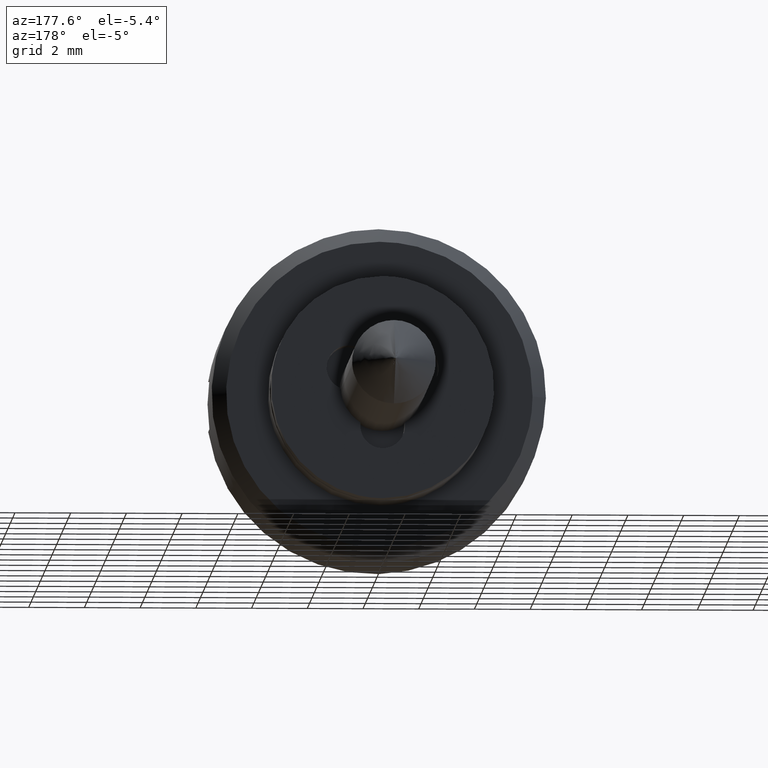
[diagram: clean part render]
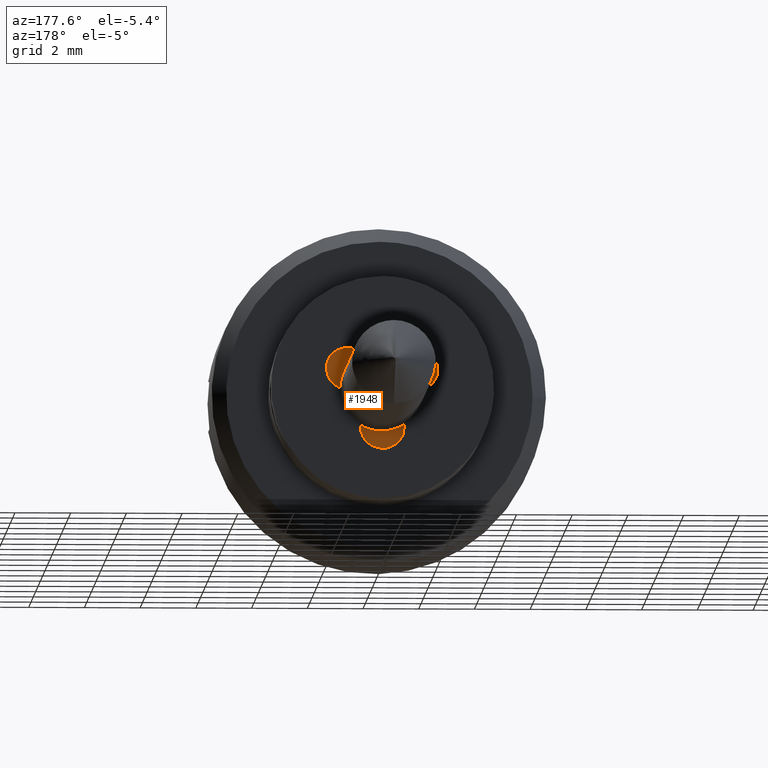
[diagram: same view with one face highlighted and labeled with its STEP entity id]
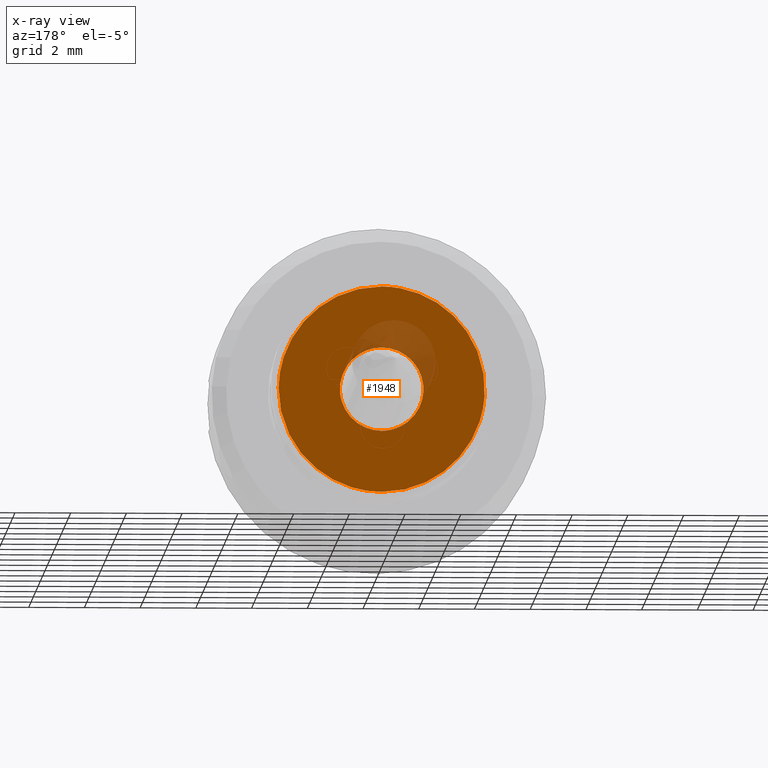
[diagram: x-ray of the same camera — body ghosted, the highlighted face saturated]
A machine part, auxiliary view. The second image highlights one B-rep face of the part: STEP entity #1948.
The next image is the same camera in x-ray: the body ghosted, the highlighted face saturated — about 9% of this face is hidden behind the body in this view.
In plain terms, the highlighted face is a freeform B-spline surface patch.
Its self-contained STEP definition (entity closure, byte-faithful):
#893=CARTESIAN_POINT('',(2.775558E-017,-1.497202197631943,-0.091572809316308));
#894=VERTEX_POINT('',#893);
#900=CARTESIAN_POINT('',(0.0,0.0,-1.500000000000000));
#901=VERTEX_POINT('',#900);
#902=CARTESIAN_POINT('',(0.0,0.0,-1.500000000000000));
#903=CARTESIAN_POINT('',(0.0,-1.411059100332062,-1.500000000000000));
#904=CARTESIAN_POINT('',(2.775558E-017,-1.497202197631943,-0.091572809316308));
#912=(BOUNDED_CURVE()B_SPLINE_CURVE(2,(#902,#903,#904),.UNSPECIFIED.,.F.,.U.)B_SPLINE_CURVE_WITH_KNOTS((3,3),(0.500000000000000,0.739332962238736),.UNSPECIFIED.)CURVE()GEOMETRIC_REPRESENTATION_ITEM()RATIONAL_B_SPLINE_CURVE((1.0,0.719603993286952,0.976072041666275))REPRESENTATION_ITEM(''));
#913=EDGE_CURVE('',#901,#894,#912,.T.);
#915=CARTESIAN_POINT('',(5.678856E-017,1.489514591208932,0.177048814085709));
#916=VERTEX_POINT('',#915);
#917=CARTESIAN_POINT('',(5.678856E-017,1.489514591208932,0.177048814085709));
#918=CARTESIAN_POINT('',(0.0,1.500000000000001,0.088834897113301));
#919=CARTESIAN_POINT('',(0.0,1.500000000000000,0.0));
#920=CARTESIAN_POINT('',(0.0,1.500000000000000,-1.500000000000000));
#921=CARTESIAN_POINT('',(0.0,0.0,-1.500000000000000));
#929=(BOUNDED_CURVE()B_SPLINE_CURVE(2,(#917,#918,#919,#920,#921),.UNSPECIFIED.,.F.,.U.)B_SPLINE_CURVE_WITH_KNOTS((3,2,3),(0.229562761470782,0.250000000000000,0.500000000000000),.UNSPECIFIED.)CURVE()GEOMETRIC_REPRESENTATION_ITEM()RATIONAL_B_SPLINE_CURVE((0.956027318592516,0.976056285694076,1.0,0.707106781186548,1.0))REPRESENTATION_ITEM(''));
#930=EDGE_CURVE('',#916,#901,#929,.T.);
#978=CARTESIAN_POINT('',(0.0,0.0,1.500000000000000));
#979=VERTEX_POINT('',#978);
#980=CARTESIAN_POINT('',(0.0,0.0,1.500000000000000));
#981=CARTESIAN_POINT('',(0.0,1.332264074873918,1.500000000000000));
#982=CARTESIAN_POINT('',(5.678856E-017,1.489514591208932,0.177048814085709));
#990=(BOUNDED_CURVE()B_SPLINE_CURVE(2,(#980,#981,#982),.UNSPECIFIED.,.F.,.U.)B_SPLINE_CURVE_WITH_KNOTS((3,3),(0.0,0.229562761470782),.UNSPECIFIED.)CURVE()GEOMETRIC_REPRESENTATION_ITEM()RATIONAL_B_SPLINE_CURVE((1.0,0.731050495492472,0.956027318592516))REPRESENTATION_ITEM(''));
#991=EDGE_CURVE('',#979,#916,#990,.T.);
#993=CARTESIAN_POINT('',(2.775558E-017,-1.497202197631943,-0.091572809316308));
#994=CARTESIAN_POINT('',(0.0,-1.500000000000000,-0.045829144961946));
#995=CARTESIAN_POINT('',(0.0,-1.500000000000000,0.0));
#996=CARTESIAN_POINT('',(0.0,-1.500000000000000,1.500000000000000));
#997=CARTESIAN_POINT('',(0.0,0.0,1.500000000000000));
#1005=(BOUNDED_CURVE()B_SPLINE_CURVE(2,(#993,#994,#995,#996,#997),.UNSPECIFIED.,.F.,.U.)B_SPLINE_CURVE_WITH_KNOTS((3,2,3),(0.739332962238736,0.750000000000000,1.0),.UNSPECIFIED.)CURVE()GEOMETRIC_REPRESENTATION_ITEM()RATIONAL_B_SPLINE_CURVE((0.976072041666274,0.987502787899595,1.0,0.707106781186548,1.0))REPRESENTATION_ITEM(''));
#1006=EDGE_CURVE('',#894,#979,#1005,.T.);
#1062=CARTESIAN_POINT('',(-3.032776E-014,3.691956480680437,-0.243838767963309));
#1063=VERTEX_POINT('',#1062);
#1069=CARTESIAN_POINT('',(0.0,0.0,-3.699999999999837));
#1070=VERTEX_POINT('',#1069);
#1071=CARTESIAN_POINT('',(0.0,0.0,-3.699999999999837));
#1072=CARTESIAN_POINT('',(0.0,3.463691033589235,-3.699999999999836));
#1073=CARTESIAN_POINT('',(-3.032776E-014,3.691956480680437,-0.243838767963309));
#1081=(BOUNDED_CURVE()B_SPLINE_CURVE(2,(#1071,#1072,#1073),.UNSPECIFIED.,.F.,.U.)B_SPLINE_CURVE_WITH_KNOTS((3,3),(0.500000000000000,0.738494527073210),.UNSPECIFIED.)CURVE()GEOMETRIC_REPRESENTATION_ITEM()RATIONAL_B_SPLINE_CURVE((1.0,0.720586281184542,0.974281704182360))REPRESENTATION_ITEM(''));
#1082=EDGE_CURVE('',#1070,#1063,#1081,.T.);
#1084=CARTESIAN_POINT('',(-3.470657E-013,-3.699859115337758,0.032288181346706));
#1085=VERTEX_POINT('',#1084);
#1086=CARTESIAN_POINT('',(-3.470657E-013,-3.699859115337758,0.032288181346706));
#1087=CARTESIAN_POINT('',(0.0,-3.700000000000000,0.016144398039315));
#1088=CARTESIAN_POINT('',(0.0,-3.700000000000000,1.634248E-013));
#1089=CARTESIAN_POINT('',(0.0,-3.700000000000000,-3.699999999999836));
#1090=CARTESIAN_POINT('',(0.0,0.0,-3.699999999999837));
#1098=(BOUNDED_CURVE()B_SPLINE_CURVE(2,(#1086,#1087,#1088,#1089,#1090),.UNSPECIFIED.,.F.,.U.)B_SPLINE_CURVE_WITH_KNOTS((3,2,3),(0.248460105664770,0.250000000000000,0.500000000000000),.UNSPECIFIED.)CURVE()GEOMETRIC_REPRESENTATION_ITEM()RATIONAL_B_SPLINE_CURVE((0.996414028099843,0.998195901566087,1.0,0.707106781186548,1.0))REPRESENTATION_ITEM(''));
#1099=EDGE_CURVE('',#1085,#1070,#1098,.T.);
#1209=CARTESIAN_POINT('',(0.0,0.0,3.700000000000164));
#1210=VERTEX_POINT('',#1209);
#1211=CARTESIAN_POINT('',(0.0,0.0,3.700000000000164));
#1212=CARTESIAN_POINT('',(0.0,-3.667851479196351,3.700000000000163));
#1213=CARTESIAN_POINT('',(-3.470657E-013,-3.699859115337758,0.032288181346706));
#1221=(BOUNDED_CURVE()B_SPLINE_CURVE(2,(#1211,#1212,#1213),.UNSPECIFIED.,.F.,.U.)B_SPLINE_CURVE_WITH_KNOTS((3,3),(0.0,0.248460105664770),.UNSPECIFIED.)CURVE()GEOMETRIC_REPRESENTATION_ITEM()RATIONAL_B_SPLINE_CURVE((1.0,0.708910879620461,0.996414028099843))REPRESENTATION_ITEM(''));
#1222=EDGE_CURVE('',#1210,#1085,#1221,.T.);
#1224=CARTESIAN_POINT('',(-3.032776E-014,3.691956480680436,-0.243838767963309));
#1225=CARTESIAN_POINT('',(0.0,3.700000000000000,-0.122052049930553));
#1226=CARTESIAN_POINT('',(0.0,3.700000000000000,1.634248E-013));
#1227=CARTESIAN_POINT('',(0.0,3.700000000000000,3.700000000000164));
#1228=CARTESIAN_POINT('',(0.0,0.0,3.700000000000164));
#1236=(BOUNDED_CURVE()B_SPLINE_CURVE(2,(#1224,#1225,#1226,#1227,#1228),.UNSPECIFIED.,.F.,.U.)B_SPLINE_CURVE_WITH_KNOTS((3,2,3),(0.738494527073209,0.750000000000000,1.0),.UNSPECIFIED.)CURVE()GEOMETRIC_REPRESENTATION_ITEM()RATIONAL_B_SPLINE_CURVE((0.974281704182359,0.986520500002005,1.0,0.707106781186548,1.0))REPRESENTATION_ITEM(''));
#1237=EDGE_CURVE('',#1063,#1210,#1236,.T.);
#1931=CARTESIAN_POINT('',(0.0,-4.069470089893685,4.069630055123433));
#1932=CARTESIAN_POINT('',(0.0,4.069370848160133,4.069630055123433));
#1933=CARTESIAN_POINT('',(0.0,-4.069470089893685,-4.069630187445418));
#1934=CARTESIAN_POINT('',(0.0,4.069370848160133,-4.069630187445418));
#1935=B_SPLINE_SURFACE_WITH_KNOTS('',1,1,((#1931,#1933),(#1932,#1934)),.UNSPECIFIED.,.F.,.F.,.U.,(2,2),(2,2),(0.0,8.138840938053818),(0.0,8.139260242568851),.UNSPECIFIED.);
#1936=ORIENTED_EDGE('',*,*,#1222,.T.);
#1937=ORIENTED_EDGE('',*,*,#1099,.T.);
#1938=ORIENTED_EDGE('',*,*,#1082,.T.);
#1939=ORIENTED_EDGE('',*,*,#1237,.T.);
#1940=EDGE_LOOP('',(#1936,#1937,#1938,#1939));
#1941=FACE_OUTER_BOUND('',#1940,.T.);
#1942=ORIENTED_EDGE('',*,*,#913,.T.);
#1943=ORIENTED_EDGE('',*,*,#1006,.T.);
#1944=ORIENTED_EDGE('',*,*,#991,.T.);
#1945=ORIENTED_EDGE('',*,*,#930,.T.);
#1946=EDGE_LOOP('',(#1942,#1943,#1944,#1945));
#1947=FACE_BOUND('',#1946,.T.);
#1948=ADVANCED_FACE('',(#1941,#1947),#1935,.F.);